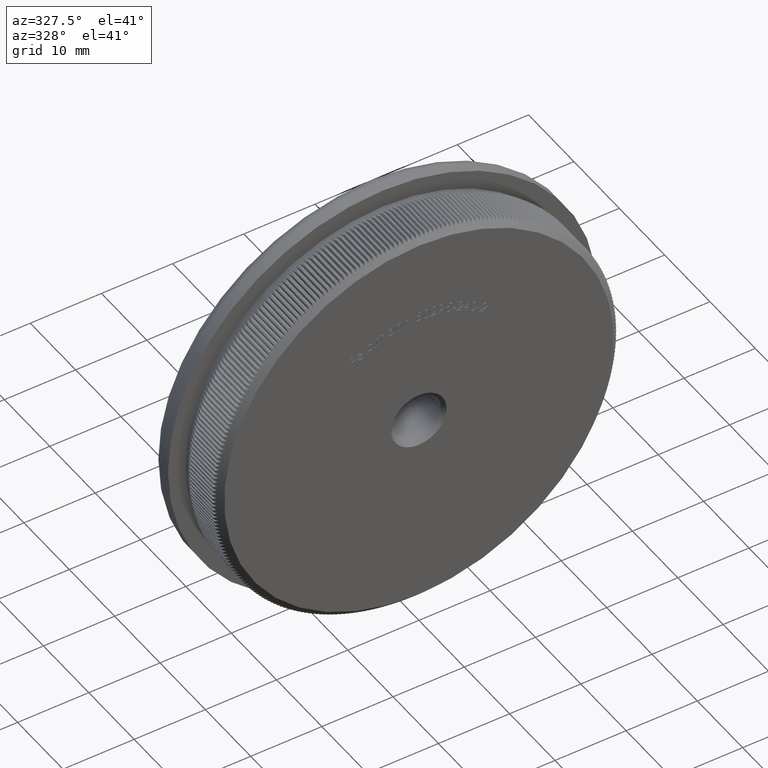
[diagram: clean part render]
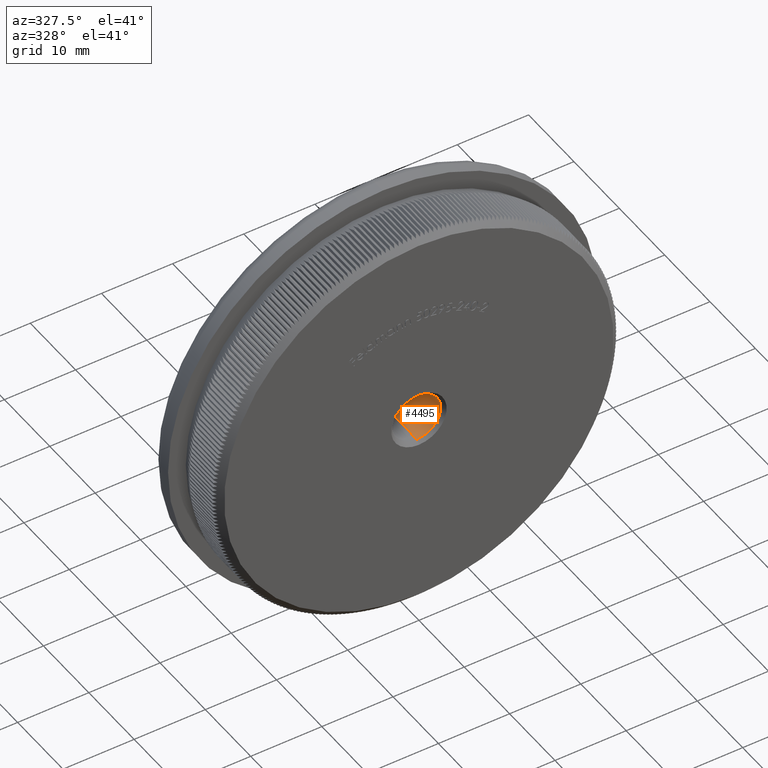
[diagram: same view with one face highlighted and labeled with its STEP entity id]
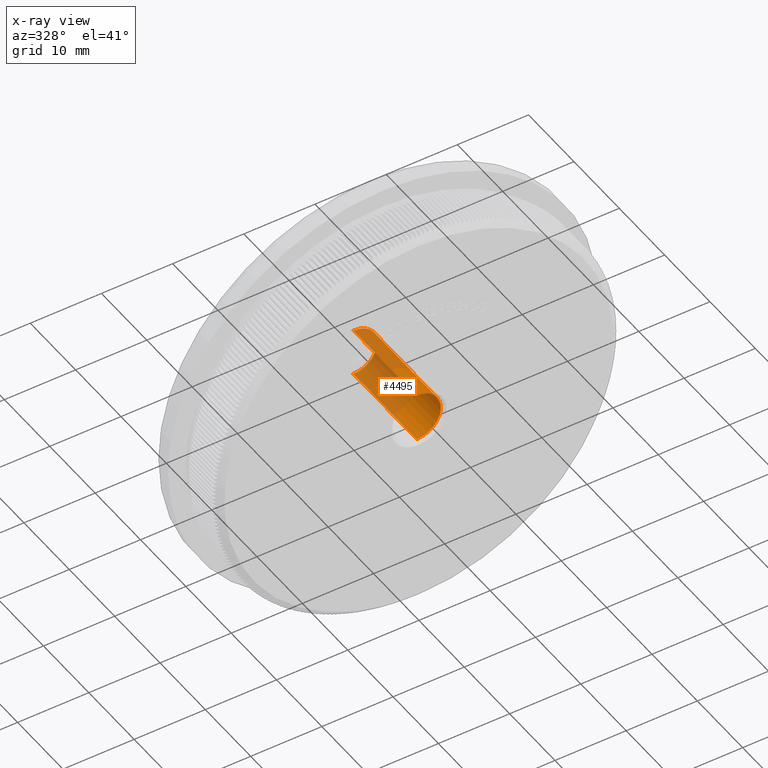
[diagram: x-ray of the same camera — body ghosted, the highlighted face saturated]
A machine part, auxiliary view. The second image highlights one B-rep face of the part: STEP entity #4495.
The next image is the same camera in x-ray: the body ghosted, the highlighted face saturated — about 57% of this face is hidden behind the body in this view.
In plain terms, the highlighted cylindrical surface (edge-blend (fillet) strip) has radius 3.4 mm, axis along (-0, -1, -0).
Its self-contained STEP definition (entity closure, byte-faithful):
#780 = DIRECTION ( 'NONE',  ( 0.0000000000000000000, 0.0000000000000000000, -1.000000000000000000 ) ) ;
#1365 = VERTEX_POINT ( 'NONE', #28565 ) ;
#1682 = DIRECTION ( 'NONE',  ( 0.0000000000000000000, 0.0000000000000000000, -1.000000000000000000 ) ) ;
#2000 = CARTESIAN_POINT ( 'NONE',  ( 4.163799117100995600E-016, 0.4999999999999822400, 3.399999999999995500 ) ) ;
#2051 = CARTESIAN_POINT ( 'NONE',  ( 0.0000000000000000000, 0.4999999999999822400, -3.399999999999995500 ) ) ;
#2721 = EDGE_CURVE ( 'NONE', #1365, #29740, #44631, .T. ) ;
#3932 = DIRECTION ( 'NONE',  ( -0.0000000000000000000, -1.000000000000000000, -0.0000000000000000000 ) ) ;
#4495 = ADVANCED_FACE ( 'NONE', ( #43989 ), #42951, .F. ) ;
#4697 = DIRECTION ( 'NONE',  ( 0.0000000000000000000, -1.000000000000000000, 0.0000000000000000000 ) ) ;
#7920 = AXIS2_PLACEMENT_3D ( 'NONE', #22340, #4697, #1682 ) ;
#8681 = AXIS2_PLACEMENT_3D ( 'NONE', #13132, #37231, #16598 ) ;
#10801 = CIRCLE ( 'NONE', #8681, 3.399999999999995500 ) ;
#11467 = CARTESIAN_POINT ( 'NONE',  ( 0.0000000000000000000, 0.0000000000000000000, 0.0000000000000000000 ) ) ;
#11715 = ORIENTED_EDGE ( 'NONE', *, *, #37944, .T. ) ;
#13132 = CARTESIAN_POINT ( 'NONE',  ( 0.0000000000000000000, 14.47426544225190200, 0.0000000000000000000 ) ) ;
#13374 = ORIENTED_EDGE ( 'NONE', *, *, #2721, .F. ) ;
#14178 = LINE ( 'NONE', #39254, #23348 ) ;
#15340 = DIRECTION ( 'NONE',  ( -0.0000000000000000000, -1.000000000000000000, -0.0000000000000000000 ) ) ;
#16598 = DIRECTION ( 'NONE',  ( 0.0000000000000000000, 0.0000000000000000000, 1.000000000000000000 ) ) ;
#18031 = VERTEX_POINT ( 'NONE', #2051 ) ;
#19336 = ORIENTED_EDGE ( 'NONE', *, *, #42622, .T. ) ;
#20225 = CIRCLE ( 'NONE', #7920, 3.399999999999995500 ) ;
#22340 = CARTESIAN_POINT ( 'NONE',  ( 0.0000000000000000000, 0.4999999999999822400, 0.0000000000000000000 ) ) ;
#23348 = VECTOR ( 'NONE', #15340, 1000.000000000000000 ) ;
#23563 = VECTOR ( 'NONE', #36142, 1000.000000000000000 ) ;
#24681 = EDGE_LOOP ( 'NONE', ( #13374, #19336, #30721, #11715 ) ) ;
#27017 = CARTESIAN_POINT ( 'NONE',  ( 0.0000000000000000000, 14.47426544225190200, -3.399999999999995500 ) ) ;
#27200 = AXIS2_PLACEMENT_3D ( 'NONE', #11467, #3932, #780 ) ;
#28565 = CARTESIAN_POINT ( 'NONE',  ( 4.163799117100995600E-016, 14.47426544225190200, 3.399999999999995500 ) ) ;
#29740 = VERTEX_POINT ( 'NONE', #2000 ) ;
#30721 = ORIENTED_EDGE ( 'NONE', *, *, #31787, .T. ) ;
#31787 = EDGE_CURVE ( 'NONE', #36237, #18031, #14178, .T. ) ;
#35853 = CARTESIAN_POINT ( 'NONE',  ( 4.163799117100995600E-016, 0.0000000000000000000, 3.399999999999995500 ) ) ;
#36142 = DIRECTION ( 'NONE',  ( -0.0000000000000000000, -1.000000000000000000, -0.0000000000000000000 ) ) ;
#36237 = VERTEX_POINT ( 'NONE', #27017 ) ;
#37231 = DIRECTION ( 'NONE',  ( 0.0000000000000000000, 1.000000000000000000, 0.0000000000000000000 ) ) ;
#37944 = EDGE_CURVE ( 'NONE', #18031, #29740, #20225, .T. ) ;
#39254 = CARTESIAN_POINT ( 'NONE',  ( 0.0000000000000000000, 0.0000000000000000000, -3.399999999999995500 ) ) ;
#42622 = EDGE_CURVE ( 'NONE', #1365, #36237, #10801, .T. ) ;
#42951 = CYLINDRICAL_SURFACE ( 'NONE', #27200, 3.399999999999995500 ) ;
#43989 = FACE_OUTER_BOUND ( 'NONE', #24681, .T. ) ;
#44631 = LINE ( 'NONE', #35853, #23563 ) ;